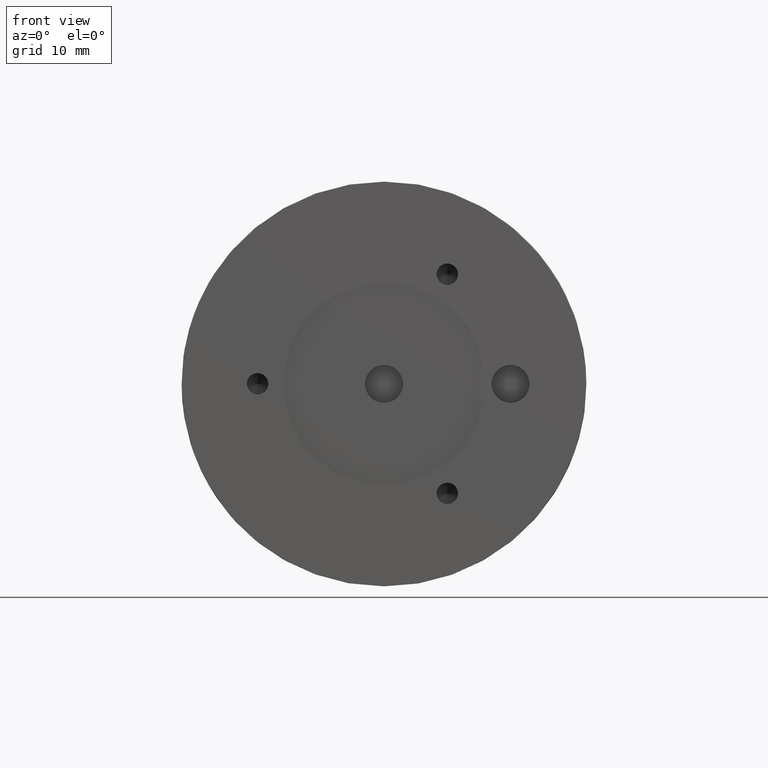
[diagram: clean part render]
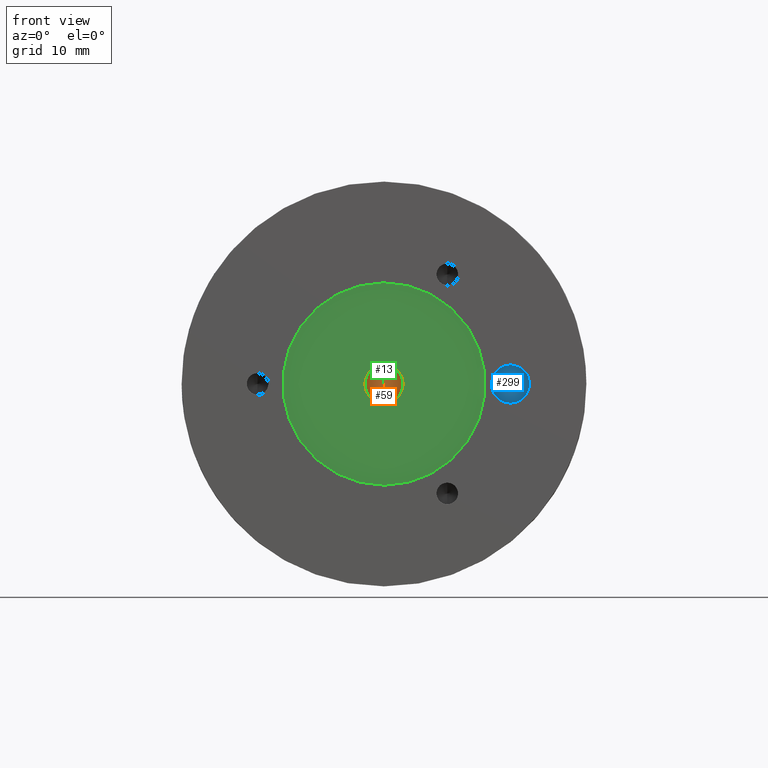
[diagram: same view with three faces highlighted in distinct colors, each labeled with its STEP entity id]
A machine part, front view with three faces highlighted in distinct colors.
Their STEP definitions:

[orange] entity #59 — the highlighted planar face has unit normal (0, 1, 0).
#43 = DIRECTION ( 'NONE',  ( 0.0000000000000000000, 1.000000000000000000, 0.0000000000000000000 ) ) ;
#57 = AXIS2_PLACEMENT_3D ( 'NONE', #436, #183, #585 ) ;
#59 = ADVANCED_FACE ( 'NONE', ( #580 ), #215, .F. ) ;
#63 = CIRCLE ( 'NONE', #345, 2.387499999999999289 ) ;
#65 = CARTESIAN_POINT ( 'NONE',  ( 2.923844232964305409E-16, 4.320000000000000284, 2.387499999999999289 ) ) ;
#154 = AXIS2_PLACEMENT_3D ( 'NONE', #649, #43, #309 ) ;
#179 = CIRCLE ( 'NONE', #57, 2.387499999999999289 ) ;
#183 = DIRECTION ( 'NONE',  ( -0.0000000000000000000, -1.000000000000000000, -0.0000000000000000000 ) ) ;
#190 = DIRECTION ( 'NONE',  ( -0.0000000000000000000, -1.000000000000000000, -0.0000000000000000000 ) ) ;
#215 = PLANE ( 'NONE',  #154 ) ;
#298 = VERTEX_POINT ( 'NONE', #527 ) ;
#309 = DIRECTION ( 'NONE',  ( 0.0000000000000000000, -0.0000000000000000000, 1.000000000000000000 ) ) ;
#345 = AXIS2_PLACEMENT_3D ( 'NONE', #690, #190, #540 ) ;
#369 = EDGE_CURVE ( 'NONE', #574, #298, #63, .T. ) ;
#436 = CARTESIAN_POINT ( 'NONE',  ( 0.0000000000000000000, 4.320000000000000284, 0.0000000000000000000 ) ) ;
#527 = CARTESIAN_POINT ( 'NONE',  ( 0.0000000000000000000, 4.320000000000000284, -2.387499999999999289 ) ) ;
#540 = DIRECTION ( 'NONE',  ( 0.0000000000000000000, 0.0000000000000000000, -1.000000000000000000 ) ) ;
#574 = VERTEX_POINT ( 'NONE', #65 ) ;
#580 = FACE_OUTER_BOUND ( 'NONE', #735, .T. ) ;
#585 = DIRECTION ( 'NONE',  ( 0.0000000000000000000, 0.0000000000000000000, -1.000000000000000000 ) ) ;
#649 = CARTESIAN_POINT ( 'NONE',  ( -1.058094834463310631E-15, 4.319999999999995843, 0.0000000000000000000 ) ) ;
#690 = CARTESIAN_POINT ( 'NONE',  ( 0.0000000000000000000, 4.320000000000000284, 0.0000000000000000000 ) ) ;
#735 = EDGE_LOOP ( 'NONE', ( #862, #795 ) ) ;
#756 = EDGE_CURVE ( 'NONE', #298, #574, #179, .T. ) ;
#795 = ORIENTED_EDGE ( 'NONE', *, *, #369, .T. ) ;
#862 = ORIENTED_EDGE ( 'NONE', *, *, #756, .T. ) ;

[blue] entity #299 — the highlighted planar face has unit normal (0, 1, 0).
#7 = CARTESIAN_POINT ( 'NONE',  ( 15.87500000000000000, 4.320000000000000284, 0.0000000000000000000 ) ) ;
#115 = CARTESIAN_POINT ( 'NONE',  ( 15.87500000000000000, 4.319999999999995843, 0.0000000000000000000 ) ) ;
#132 = VERTEX_POINT ( 'NONE', #792 ) ;
#139 = DIRECTION ( 'NONE',  ( -0.0000000000000000000, -1.000000000000000000, -0.0000000000000000000 ) ) ;
#156 = VERTEX_POINT ( 'NONE', #371 ) ;
#266 = AXIS2_PLACEMENT_3D ( 'NONE', #386, #703, #625 ) ;
#299 = ADVANCED_FACE ( 'NONE', ( #397 ), #812, .F. ) ;
#319 = DIRECTION ( 'NONE',  ( 0.0000000000000000000, 1.000000000000000000, 0.0000000000000000000 ) ) ;
#327 = EDGE_LOOP ( 'NONE', ( #798, #736 ) ) ;
#352 = EDGE_CURVE ( 'NONE', #132, #156, #419, .T. ) ;
#371 = CARTESIAN_POINT ( 'NONE',  ( 15.87500000000000000, 4.320000000000000284, -2.387500000000000622 ) ) ;
#386 = CARTESIAN_POINT ( 'NONE',  ( 15.87500000000000000, 4.320000000000000284, 0.0000000000000000000 ) ) ;
#397 = FACE_OUTER_BOUND ( 'NONE', #327, .T. ) ;
#419 = CIRCLE ( 'NONE', #266, 2.387500000000000622 ) ;
#625 = DIRECTION ( 'NONE',  ( 0.0000000000000000000, 0.0000000000000000000, -1.000000000000000000 ) ) ;
#695 = DIRECTION ( 'NONE',  ( 0.0000000000000000000, 0.0000000000000000000, -1.000000000000000000 ) ) ;
#698 = EDGE_CURVE ( 'NONE', #156, #132, #786, .T. ) ;
#703 = DIRECTION ( 'NONE',  ( -0.0000000000000000000, -1.000000000000000000, -0.0000000000000000000 ) ) ;
#729 = AXIS2_PLACEMENT_3D ( 'NONE', #115, #319, #887 ) ;
#736 = ORIENTED_EDGE ( 'NONE', *, *, #352, .T. ) ;
#786 = CIRCLE ( 'NONE', #802, 2.387500000000000622 ) ;
#792 = CARTESIAN_POINT ( 'NONE',  ( 15.87500000000000000, 4.320000000000000284, 2.387500000000000622 ) ) ;
#798 = ORIENTED_EDGE ( 'NONE', *, *, #698, .T. ) ;
#802 = AXIS2_PLACEMENT_3D ( 'NONE', #7, #139, #695 ) ;
#812 = PLANE ( 'NONE',  #729 ) ;
#887 = DIRECTION ( 'NONE',  ( 0.0000000000000000000, -0.0000000000000000000, 1.000000000000000000 ) ) ;

[green] entity #13 — the highlighted planar face has unit normal (0, -1, 0).
#13 = ADVANCED_FACE ( 'NONE', ( #313, #826 ), #572, .T. ) ;
#25 = AXIS2_PLACEMENT_3D ( 'NONE', #725, #667, #297 ) ;
#38 = CIRCLE ( 'NONE', #536, 12.69999999999999929 ) ;
#40 = CIRCLE ( 'NONE', #883, 2.387499999999999734 ) ;
#61 = DIRECTION ( 'NONE',  ( 0.0000000000000000000, -1.000000000000000000, 0.0000000000000000000 ) ) ;
#90 = EDGE_CURVE ( 'NONE', #460, #661, #248, .T. ) ;
#136 = DIRECTION ( 'NONE',  ( 0.0000000000000000000, 0.0000000000000000000, -1.000000000000000000 ) ) ;
#140 = AXIS2_PLACEMENT_3D ( 'NONE', #334, #61, #136 ) ;
#153 = DIRECTION ( 'NONE',  ( 0.0000000000000000000, -1.000000000000000000, 0.0000000000000000000 ) ) ;
#167 = CIRCLE ( 'NONE', #140, 12.69999999999999929 ) ;
#172 = AXIS2_PLACEMENT_3D ( 'NONE', #501, #153, #643 ) ;
#184 = VERTEX_POINT ( 'NONE', #660 ) ;
#202 = CARTESIAN_POINT ( 'NONE',  ( 0.0000000000000000000, 0.5080000000000000071, 0.0000000000000000000 ) ) ;
#248 = CIRCLE ( 'NONE', #25, 2.387499999999999734 ) ;
#249 = EDGE_LOOP ( 'NONE', ( #288, #499 ) ) ;
#269 = ORIENTED_EDGE ( 'NONE', *, *, #809, .T. ) ;
#288 = ORIENTED_EDGE ( 'NONE', *, *, #387, .T. ) ;
#297 = DIRECTION ( 'NONE',  ( 0.0000000000000000000, 0.0000000000000000000, -1.000000000000000000 ) ) ;
#313 = FACE_OUTER_BOUND ( 'NONE', #629, .T. ) ;
#323 = CARTESIAN_POINT ( 'NONE',  ( -2.642881778843148241E-15, 0.5080000000000000071, -12.69999999999999929 ) ) ;
#334 = CARTESIAN_POINT ( 'NONE',  ( -2.642881778843148241E-15, 0.5080000000000000071, 0.0000000000000000000 ) ) ;
#387 = EDGE_CURVE ( 'NONE', #661, #460, #40, .T. ) ;
#460 = VERTEX_POINT ( 'NONE', #537 ) ;
#499 = ORIENTED_EDGE ( 'NONE', *, *, #90, .T. ) ;
#501 = CARTESIAN_POINT ( 'NONE',  ( -2.642881778843148241E-15, 0.5080000000000000071, 0.0000000000000000000 ) ) ;
#536 = AXIS2_PLACEMENT_3D ( 'NONE', #764, #543, #828 ) ;
#537 = CARTESIAN_POINT ( 'NONE',  ( 2.923844232964305902E-16, 0.5080000000000000071, 2.387499999999999734 ) ) ;
#543 = DIRECTION ( 'NONE',  ( 0.0000000000000000000, -1.000000000000000000, 0.0000000000000000000 ) ) ;
#572 = PLANE ( 'NONE',  #172 ) ;
#614 = CARTESIAN_POINT ( 'NONE',  ( 0.0000000000000000000, 0.5080000000000000071, -2.387499999999999734 ) ) ;
#617 = ORIENTED_EDGE ( 'NONE', *, *, #650, .T. ) ;
#629 = EDGE_LOOP ( 'NONE', ( #617, #269 ) ) ;
#643 = DIRECTION ( 'NONE',  ( 0.0000000000000000000, -0.0000000000000000000, -1.000000000000000000 ) ) ;
#644 = VERTEX_POINT ( 'NONE', #323 ) ;
#650 = EDGE_CURVE ( 'NONE', #644, #184, #38, .T. ) ;
#660 = CARTESIAN_POINT ( 'NONE',  ( -1.087580343926009808E-15, 0.5080000000000000071, 12.69999999999999929 ) ) ;
#661 = VERTEX_POINT ( 'NONE', #614 ) ;
#667 = DIRECTION ( 'NONE',  ( -0.0000000000000000000, 1.000000000000000000, -0.0000000000000000000 ) ) ;
#725 = CARTESIAN_POINT ( 'NONE',  ( 0.0000000000000000000, 0.5080000000000000071, 0.0000000000000000000 ) ) ;
#764 = CARTESIAN_POINT ( 'NONE',  ( -2.642881778843148241E-15, 0.5080000000000000071, 0.0000000000000000000 ) ) ;
#768 = DIRECTION ( 'NONE',  ( 0.0000000000000000000, 0.0000000000000000000, -1.000000000000000000 ) ) ;
#809 = EDGE_CURVE ( 'NONE', #184, #644, #167, .T. ) ;
#822 = DIRECTION ( 'NONE',  ( -0.0000000000000000000, 1.000000000000000000, -0.0000000000000000000 ) ) ;
#826 = FACE_BOUND ( 'NONE', #249, .T. ) ;
#828 = DIRECTION ( 'NONE',  ( 0.0000000000000000000, 0.0000000000000000000, -1.000000000000000000 ) ) ;
#883 = AXIS2_PLACEMENT_3D ( 'NONE', #202, #822, #768 ) ;